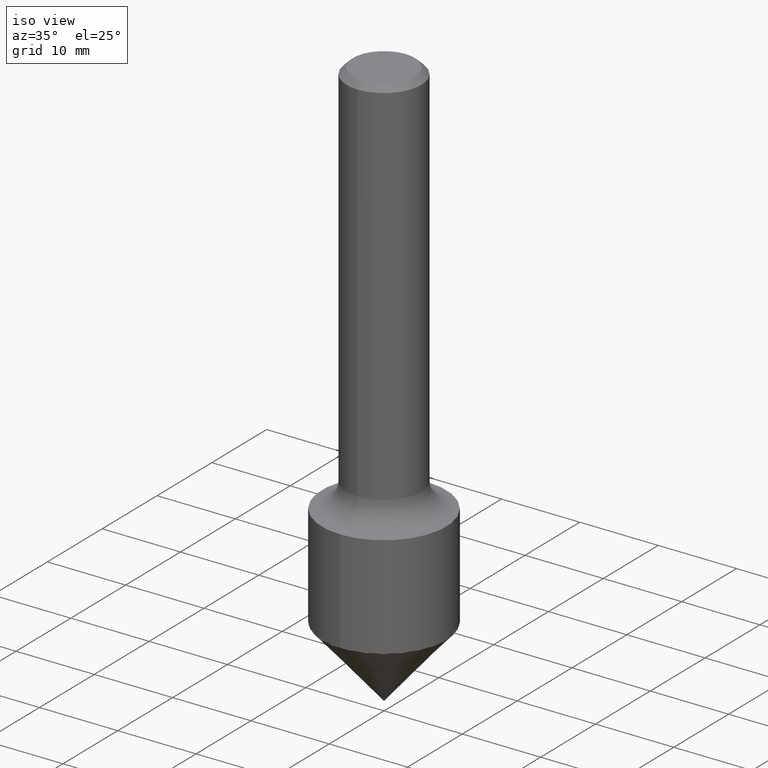
[diagram: clean part render]
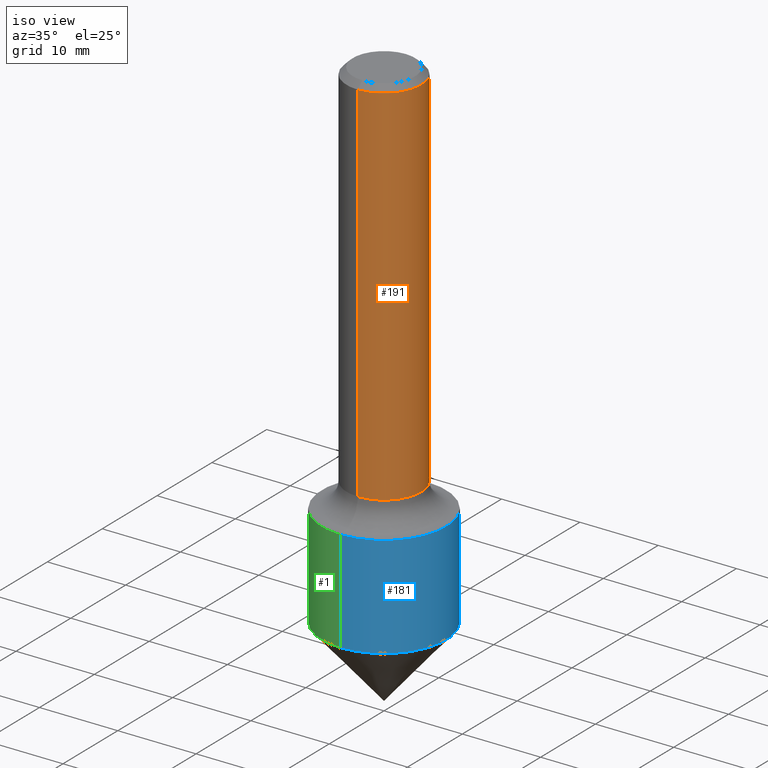
[diagram: same view with three faces highlighted in distinct colors, each labeled with its STEP entity id]
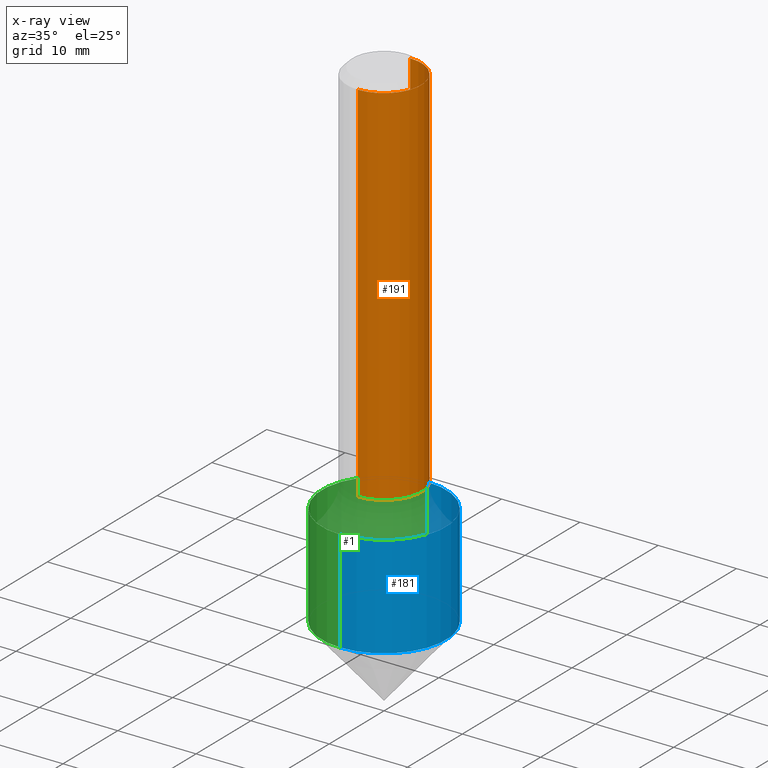
[diagram: x-ray of the same camera — body ghosted, the three highlighted faces saturated]
A machine part, iso view with three faces highlighted in distinct colors.
The next image is the same camera in x-ray (body ghosted, the three faces saturated) — at least one of them is partly hidden behind the body in this view.
Their STEP definitions:

[orange] entity #191 — the highlighted cylindrical surface (partial cylindrical patch) has radius 4.7625 mm, axis along (-0, 0, 1).
#19 = CYLINDRICAL_SURFACE ( 'NONE', #173, 0.1875000000000001943 ) ;
#54 = CARTESIAN_POINT ( 'NONE',  ( 1.776356839400297402E-15, 0.1874999999999936995, -1.880000000000001004 ) ) ;
#59 = DIRECTION ( 'NONE',  ( -2.425980914324989080E-29, 3.519389109168798508E-15, 1.000000000000000000 ) ) ;
#66 = CIRCLE ( 'NONE', #224, 0.1875000000000003331 ) ;
#69 = CARTESIAN_POINT ( 'NONE',  ( -1.286343374582161379E-15, -0.1875000000000001110, -0.03119999999999956142 ) ) ;
#70 = DIRECTION ( 'NONE',  ( -2.425980914324989080E-29, 3.519389109168798508E-15, 1.000000000000000000 ) ) ;
#90 = FACE_OUTER_BOUND ( 'NONE', #422, .T. ) ;
#98 = DIRECTION ( 'NONE',  ( -6.982962677686265922E-15, -1.000000000000000000, 3.519389109168798114E-15 ) ) ;
#140 = CARTESIAN_POINT ( 'NONE',  ( -1.309305502066131621E-15, -0.1875000000000069389, -1.879999999999999893 ) ) ;
#143 = VERTEX_POINT ( 'NONE', #54 ) ;
#151 = DIRECTION ( 'NONE',  ( -6.982962677686265922E-15, -1.000000000000000000, 2.913971193241875639E-15 ) ) ;
#153 = LINE ( 'NONE', #373, #208 ) ;
#154 = ORIENTED_EDGE ( 'NONE', *, *, #395, .F. ) ;
#173 = AXIS2_PLACEMENT_3D ( 'NONE', #433, #393, #98 ) ;
#177 = LINE ( 'NONE', #205, #309 ) ;
#183 = VERTEX_POINT ( 'NONE', #140 ) ;
#191 = ADVANCED_FACE ( 'NONE', ( #90 ), #19, .T. ) ;
#199 = ORIENTED_EDGE ( 'NONE', *, *, #466, .T. ) ;
#205 = CARTESIAN_POINT ( 'NONE',  ( 1.332267629550188835E-15, 0.1875000000000001943, -6.598854579691503612E-16 ) ) ;
#208 = VECTOR ( 'NONE', #488, 39.37007874015748143 ) ;
#224 = AXIS2_PLACEMENT_3D ( 'NONE', #409, #70, #151 ) ;
#239 = CARTESIAN_POINT ( 'NONE',  ( 7.569060452694020354E-31, -1.098049402060672957E-16, -0.03120000000000022408 ) ) ;
#241 = DIRECTION ( 'NONE',  ( -6.982962677686265922E-15, -1.000000000000000000, 3.528636991816339448E-15 ) ) ;
#260 = EDGE_CURVE ( 'NONE', #416, #410, #377, .T. ) ;
#270 = EDGE_CURVE ( 'NONE', #143, #410, #177, .T. ) ;
#280 = AXIS2_PLACEMENT_3D ( 'NONE', #239, #59, #241 ) ;
#309 = VECTOR ( 'NONE', #356, 39.37007874015748143 ) ;
#331 = CARTESIAN_POINT ( 'NONE',  ( 1.309305502066175797E-15, 0.1874999999999999167, -0.03120000000000088675 ) ) ;
#342 = ORIENTED_EDGE ( 'NONE', *, *, #260, .F. ) ;
#356 = DIRECTION ( 'NONE',  ( -2.425980914324989080E-29, 3.519389109168798902E-15, 1.000000000000000000 ) ) ;
#373 = CARTESIAN_POINT ( 'NONE',  ( -1.309305502066176192E-15, -0.1875000000000001943, 6.598854579691503612E-16 ) ) ;
#377 = CIRCLE ( 'NONE', #280, 0.1875000000000000278 ) ;
#385 = ORIENTED_EDGE ( 'NONE', *, *, #270, .T. ) ;
#393 = DIRECTION ( 'NONE',  ( -2.425980914324989080E-29, 3.519389109168798508E-15, 1.000000000000000000 ) ) ;
#395 = EDGE_CURVE ( 'NONE', #183, #416, #153, .T. ) ;
#409 = CARTESIAN_POINT ( 'NONE',  ( 4.560844118930980782E-29, -6.616451525237342394E-15, -1.880000000000000338 ) ) ;
#410 = VERTEX_POINT ( 'NONE', #331 ) ;
#416 = VERTEX_POINT ( 'NONE', #69 ) ;
#422 = EDGE_LOOP ( 'NONE', ( #199, #385, #342, #154 ) ) ;
#433 = CARTESIAN_POINT ( 'NONE',  ( 0.000000000000000000, 0.000000000000000000, 0.000000000000000000 ) ) ;
#466 = EDGE_CURVE ( 'NONE', #183, #143, #66, .T. ) ;
#488 = DIRECTION ( 'NONE',  ( -2.425980914324989080E-29, 3.519389109168798902E-15, 1.000000000000000000 ) ) ;

[blue] entity #181 — the highlighted cylindrical surface (partial cylindrical patch) has radius 7.9375 mm, axis along (-0, 0, 1).
#6 = ORIENTED_EDGE ( 'NONE', *, *, #292, .T. ) ;
#25 = DIRECTION ( 'NONE',  ( -6.982962677686265133E-15, -1.000000000000000000, 3.519389109168797719E-15 ) ) ;
#27 = VECTOR ( 'NONE', #285, 39.37007874015748143 ) ;
#41 = AXIS2_PLACEMENT_3D ( 'NONE', #318, #326, #478 ) ;
#57 = VECTOR ( 'NONE', #479, 39.37007874015748143 ) ;
#58 = EDGE_CURVE ( 'NONE', #185, #162, #335, .T. ) ;
#61 = LINE ( 'NONE', #133, #27 ) ;
#82 = VERTEX_POINT ( 'NONE', #321 ) ;
#87 = EDGE_CURVE ( 'NONE', #166, #82, #252, .T. ) ;
#88 = CARTESIAN_POINT ( 'NONE',  ( -2.182175836776895633E-15, -0.3125000000000086597, -2.519509872743431966 ) ) ;
#118 = AXIS2_PLACEMENT_3D ( 'NONE', #482, #366, #25 ) ;
#133 = CARTESIAN_POINT ( 'NONE',  ( 2.220446049250311109E-15, 0.3124999999999998335, -1.099809096615248696E-15 ) ) ;
#162 = VERTEX_POINT ( 'NONE', #443 ) ;
#166 = VERTEX_POINT ( 'NONE', #88 ) ;
#172 = CARTESIAN_POINT ( 'NONE',  ( 4.864091733221603121E-29, -7.056375163883441320E-15, -2.004999999999999893 ) ) ;
#179 = CARTESIAN_POINT ( 'NONE',  ( -2.182175836776908649E-15, -0.3125000000000069389, -2.004999999999999005 ) ) ;
#181 = ADVANCED_FACE ( 'NONE', ( #392 ), #204, .T. ) ;
#185 = VERTEX_POINT ( 'NONE', #179 ) ;
#204 = CYLINDRICAL_SURFACE ( 'NONE', #118, 0.3124999999999998335 ) ;
#223 = AXIS2_PLACEMENT_3D ( 'NONE', #172, #362, #315 ) ;
#228 = ORIENTED_EDGE ( 'NONE', *, *, #58, .F. ) ;
#230 = EDGE_LOOP ( 'NONE', ( #265, #6, #228, #491 ) ) ;
#252 = CIRCLE ( 'NONE', #41, 0.3124999999999998335 ) ;
#265 = ORIENTED_EDGE ( 'NONE', *, *, #87, .T. ) ;
#285 = DIRECTION ( 'NONE',  ( -2.425980914324989080E-29, 3.519389109168798902E-15, 1.000000000000000000 ) ) ;
#292 = EDGE_CURVE ( 'NONE', #82, #162, #61, .T. ) ;
#315 = DIRECTION ( 'NONE',  ( -6.982962677686265133E-15, -1.000000000000000000, 3.496765431890258892E-15 ) ) ;
#316 = EDGE_CURVE ( 'NONE', #166, #185, #325, .T. ) ;
#318 = CARTESIAN_POINT ( 'NONE',  ( 6.112282864728949596E-29, -8.867135606576502190E-15, -2.519509872743432854 ) ) ;
#321 = CARTESIAN_POINT ( 'NONE',  ( 2.220446049250365935E-15, 0.3124999999999909517, -2.519509872743433743 ) ) ;
#325 = LINE ( 'NONE', #363, #57 ) ;
#326 = DIRECTION ( 'NONE',  ( -2.425980914324989080E-29, 3.519389109168798508E-15, 1.000000000000000000 ) ) ;
#335 = CIRCLE ( 'NONE', #223, 0.3124999999999998335 ) ;
#362 = DIRECTION ( 'NONE',  ( -2.425980914324989080E-29, 3.519389109168798508E-15, 1.000000000000000000 ) ) ;
#363 = CARTESIAN_POINT ( 'NONE',  ( -2.182175836776956769E-15, -0.3124999999999998335, 1.099809096615248696E-15 ) ) ;
#366 = DIRECTION ( 'NONE',  ( -2.425980914324989080E-29, 3.519389109168798508E-15, 1.000000000000000000 ) ) ;
#392 = FACE_OUTER_BOUND ( 'NONE', #230, .T. ) ;
#443 = CARTESIAN_POINT ( 'NONE',  ( 2.220446049250360807E-15, 0.3124999999999928391, -2.005000000000001226 ) ) ;
#478 = DIRECTION ( 'NONE',  ( -6.982962677686265133E-15, -1.000000000000000000, 3.496765431890258892E-15 ) ) ;
#479 = DIRECTION ( 'NONE',  ( -2.425980914324989080E-29, 3.519389109168798902E-15, 1.000000000000000000 ) ) ;
#482 = CARTESIAN_POINT ( 'NONE',  ( 0.000000000000000000, 0.000000000000000000, 0.000000000000000000 ) ) ;
#491 = ORIENTED_EDGE ( 'NONE', *, *, #316, .F. ) ;

[green] entity #1 — the highlighted cylindrical surface (partial cylindrical patch) has radius 7.9375 mm, axis along (-0, 0, 1).
#1 = ADVANCED_FACE ( 'NONE', ( #14 ), #136, .T. ) ;
#14 = FACE_OUTER_BOUND ( 'NONE', #115, .T. ) ;
#27 = VECTOR ( 'NONE', #285, 39.37007874015748143 ) ;
#31 = ORIENTED_EDGE ( 'NONE', *, *, #275, .F. ) ;
#49 = CIRCLE ( 'NONE', #180, 0.3124999999999998335 ) ;
#57 = VECTOR ( 'NONE', #479, 39.37007874015748143 ) ;
#61 = LINE ( 'NONE', #133, #27 ) ;
#82 = VERTEX_POINT ( 'NONE', #321 ) ;
#88 = CARTESIAN_POINT ( 'NONE',  ( -2.182175836776895633E-15, -0.3125000000000086597, -2.519509872743431966 ) ) ;
#94 = DIRECTION ( 'NONE',  ( -6.982962677686265133E-15, -1.000000000000000000, 3.519389109168797719E-15 ) ) ;
#115 = EDGE_LOOP ( 'NONE', ( #312, #298, #348, #31 ) ) ;
#128 = CARTESIAN_POINT ( 'NONE',  ( 0.000000000000000000, 0.000000000000000000, 0.000000000000000000 ) ) ;
#129 = CIRCLE ( 'NONE', #481, 0.3124999999999998335 ) ;
#133 = CARTESIAN_POINT ( 'NONE',  ( 2.220446049250311109E-15, 0.3124999999999998335, -1.099809096615248696E-15 ) ) ;
#136 = CYLINDRICAL_SURFACE ( 'NONE', #376, 0.3124999999999998335 ) ;
#162 = VERTEX_POINT ( 'NONE', #443 ) ;
#166 = VERTEX_POINT ( 'NONE', #88 ) ;
#171 = CARTESIAN_POINT ( 'NONE',  ( 4.864091733221603121E-29, -7.056375163883441320E-15, -2.004999999999999893 ) ) ;
#179 = CARTESIAN_POINT ( 'NONE',  ( -2.182175836776908649E-15, -0.3125000000000069389, -2.004999999999999005 ) ) ;
#180 = AXIS2_PLACEMENT_3D ( 'NONE', #453, #452, #415 ) ;
#185 = VERTEX_POINT ( 'NONE', #179 ) ;
#242 = DIRECTION ( 'NONE',  ( -2.425980914324989080E-29, 3.519389109168798508E-15, 1.000000000000000000 ) ) ;
#275 = EDGE_CURVE ( 'NONE', #162, #185, #129, .T. ) ;
#285 = DIRECTION ( 'NONE',  ( -2.425980914324989080E-29, 3.519389109168798902E-15, 1.000000000000000000 ) ) ;
#292 = EDGE_CURVE ( 'NONE', #82, #162, #61, .T. ) ;
#298 = ORIENTED_EDGE ( 'NONE', *, *, #360, .T. ) ;
#312 = ORIENTED_EDGE ( 'NONE', *, *, #292, .F. ) ;
#316 = EDGE_CURVE ( 'NONE', #166, #185, #325, .T. ) ;
#321 = CARTESIAN_POINT ( 'NONE',  ( 2.220446049250365935E-15, 0.3124999999999909517, -2.519509872743433743 ) ) ;
#322 = DIRECTION ( 'NONE',  ( -6.982962677686265133E-15, -1.000000000000000000, 3.496765431890258892E-15 ) ) ;
#325 = LINE ( 'NONE', #363, #57 ) ;
#348 = ORIENTED_EDGE ( 'NONE', *, *, #316, .T. ) ;
#360 = EDGE_CURVE ( 'NONE', #82, #166, #49, .T. ) ;
#363 = CARTESIAN_POINT ( 'NONE',  ( -2.182175836776956769E-15, -0.3124999999999998335, 1.099809096615248696E-15 ) ) ;
#376 = AXIS2_PLACEMENT_3D ( 'NONE', #128, #242, #94 ) ;
#396 = DIRECTION ( 'NONE',  ( -2.425980914324989080E-29, 3.519389109168798508E-15, 1.000000000000000000 ) ) ;
#415 = DIRECTION ( 'NONE',  ( -6.982962677686265133E-15, -1.000000000000000000, 3.496765431890258892E-15 ) ) ;
#443 = CARTESIAN_POINT ( 'NONE',  ( 2.220446049250360807E-15, 0.3124999999999928391, -2.005000000000001226 ) ) ;
#452 = DIRECTION ( 'NONE',  ( -2.425980914324989080E-29, 3.519389109168798508E-15, 1.000000000000000000 ) ) ;
#453 = CARTESIAN_POINT ( 'NONE',  ( 6.112282864728949596E-29, -8.867135606576502190E-15, -2.519509872743432854 ) ) ;
#479 = DIRECTION ( 'NONE',  ( -2.425980914324989080E-29, 3.519389109168798902E-15, 1.000000000000000000 ) ) ;
#481 = AXIS2_PLACEMENT_3D ( 'NONE', #171, #396, #322 ) ;